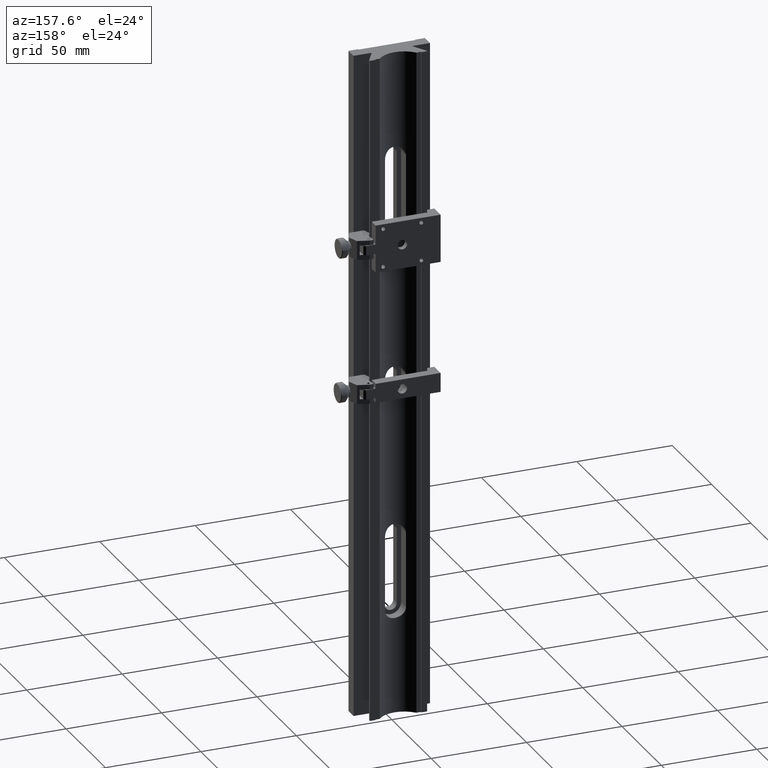
[diagram: clean part render]
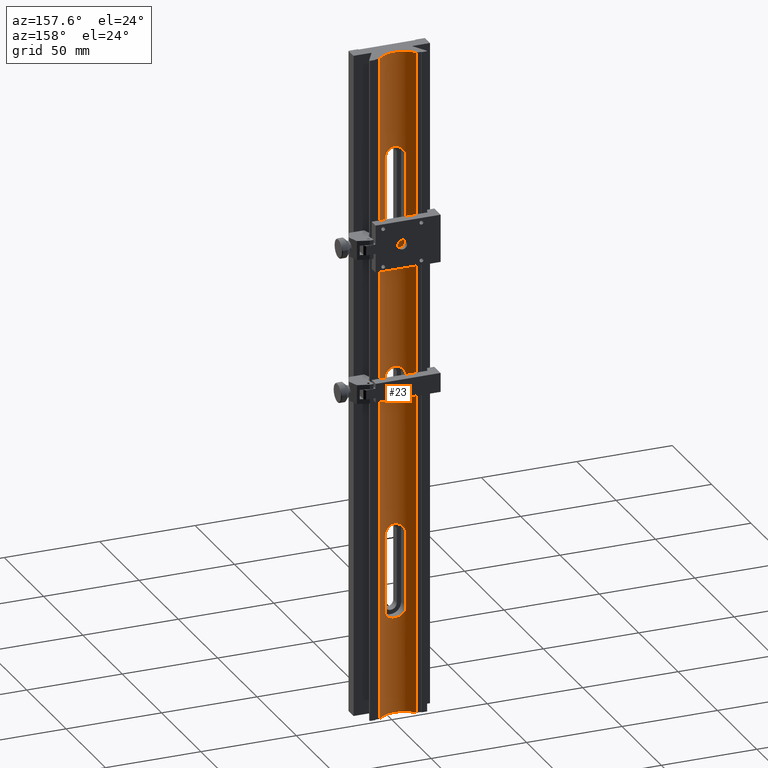
[diagram: same view with one face highlighted and labeled with its STEP entity id]
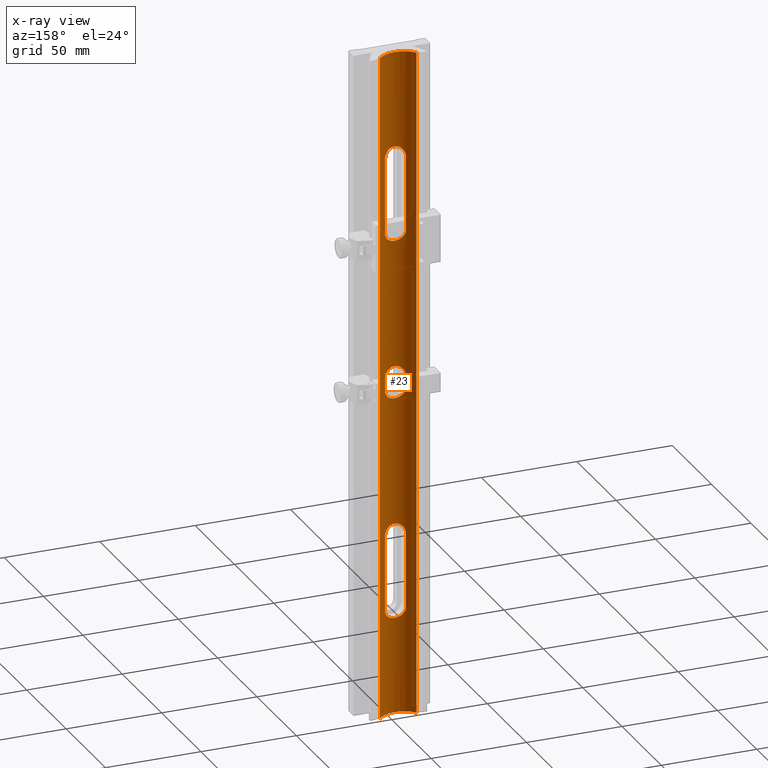
[diagram: x-ray of the same camera — body ghosted, the highlighted face saturated]
A machine part, auxiliary view. The second image highlights one B-rep face of the part: STEP entity #23.
The next image is the same camera in x-ray: the body ghosted, the highlighted face saturated — about 0% of this face is hidden behind the body in this view.
In plain terms, the highlighted cylindrical surface (edge-blend (fillet) strip) has radius 12.5 mm, axis along (-0, 0, -1).
Its self-contained STEP definition (entity closure, byte-faithful):
#23 = ADVANCED_FACE ( 'NONE', ( #6039, #4931, #6647, #5492 ), #3388, .F. ) ;
#48 = CARTESIAN_POINT ( 'NONE',  ( -4.757545737347819603, 4.440405074606873725, 122.2654660182066380 ) ) ;
#50 = DIRECTION ( 'NONE',  ( 0.000000000000000000, 1.000000000000000000, 0.000000000000000000 ) ) ;
#64 = CARTESIAN_POINT ( 'NONE',  ( -4.468409719719221407, 4.325465594975087313, -122.7117387334019440 ) ) ;
#106 = DIRECTION ( 'NONE',  ( 0.000000000000000000, -0.000000000000000000, 1.000000000000000000 ) ) ;
#135 = CARTESIAN_POINT ( 'NONE',  ( 1.444167463114246042, 3.582471709711287922, -75.18988249381513356 ) ) ;
#149 = CARTESIAN_POINT ( 'NONE',  ( -5.500000000000001776, 4.775027839678175567, -119.5000000000000000 ) ) ;
#153 = CARTESIAN_POINT ( 'NONE',  ( -5.499999999999994671, 4.775027839678172015, 119.5000000000000000 ) ) ;
#167 = CARTESIAN_POINT ( 'NONE',  ( 4.935953207741847315, 4.514820086043216385, -78.04735380139054257 ) ) ;
#169 = VERTEX_POINT ( 'NONE', #3631 ) ;
#179 = EDGE_CURVE ( 'NONE', #1857, #5928, #5267, .T. ) ;
#210 = CARTESIAN_POINT ( 'NONE',  ( -1.783197991779763125, 3.623181025438776626, -75.28445996368884607 ) ) ;
#225 = CARTESIAN_POINT ( 'NONE',  ( -0.1746818680405356206, 3.499893860054751560, 8.500241227327975935 ) ) ;
#244 = CARTESIAN_POINT ( 'NONE',  ( 4.360951971730211874, 4.284773272989580661, -77.14384853326598090 ) ) ;
#258 = CARTESIAN_POINT ( 'NONE',  ( -0.3589657864649588581, 3.503822942303211452, 8.491329862232154468 ) ) ;
#260 = CARTESIAN_POINT ( 'NONE',  ( 4.927301002126855067, 4.511737245493963933, 78.04974520197357890 ) ) ;
#297 = CARTESIAN_POINT ( 'NONE',  ( 4.134927261176858160, 4.203101428351038393, 6.630982141538983576 ) ) ;
#334 = CARTESIAN_POINT ( 'NONE',  ( -2.455686713790332654, 3.739010744038297140, 75.56565600194463173 ) ) ;
#367 = EDGE_CURVE ( 'NONE', #2166, #2968, #3036, .T. ) ;
#374 = CARTESIAN_POINT ( 'NONE',  ( 4.365141366191272354, 4.284993196813132066, -6.364994128390051742 ) ) ;
#400 = CARTESIAN_POINT ( 'NONE',  ( 2.452909808896961419, 3.738324891094070512, 75.56391993402969831 ) ) ;
#408 = CARTESIAN_POINT ( 'NONE',  ( -1.444167463114248928, 3.582471709711283481, -8.310117506184877101 ) ) ;
#447 = CARTESIAN_POINT ( 'NONE',  ( -3.640810629803841181, 4.039074654214519278, -7.137592340526054180 ) ) ;
#479 = CARTESIAN_POINT ( 'NONE',  ( 5.500000000000002665, 4.775027839678175567, 119.8683992632187199 ) ) ;
#492 = CARTESIAN_POINT ( 'NONE',  ( 0.7235754915566933176, 3.519625967096239538, -124.9552725504518378 ) ) ;
#495 = VERTEX_POINT ( 'NONE', #3155 ) ;
#506 = DIRECTION ( 'NONE',  ( 0.000000000000000000, -1.000000000000000000, 0.000000000000000000 ) ) ;
#511 = CARTESIAN_POINT ( 'NONE',  ( 5.499999999999995559, 4.775027839678172015, -119.5000000000000000 ) ) ;
#513 = CARTESIAN_POINT ( 'NONE',  ( 0.7318247305610939835, 3.516321624483724317, 124.9631879215218362 ) ) ;
#525 = CARTESIAN_POINT ( 'NONE',  ( 0.9034421561682070001, 3.531417676067723832, -124.9283122604022367 ) ) ;
#545 = DIRECTION ( 'NONE',  ( 0.000000000000000000, -1.000000000000000000, 0.000000000000000000 ) ) ;
#552 = CARTESIAN_POINT ( 'NONE',  ( -4.140132957479333520, 4.202588055097336017, 123.1380067928263173 ) ) ;
#562 = CARTESIAN_POINT ( 'NONE',  ( 4.365141366191279459, 4.284993196813132954, -122.8649941283900375 ) ) ;
#573 = EDGE_CURVE ( 'NONE', #1379, #1857, #941, .T. ) ;
#583 = CARTESIAN_POINT ( 'NONE',  ( 3.365233826132086659, 3.957591329563106886, 123.8650858888913007 ) ) ;
#593 = CARTESIAN_POINT ( 'NONE',  ( -4.360951971730210097, 4.284773272989579773, -122.8561514667340617 ) ) ;
#614 = CARTESIAN_POINT ( 'NONE',  ( 4.015897234029110585, 4.161930955679306265, 123.2621619463195941 ) ) ;
#630 = CARTESIAN_POINT ( 'NONE',  ( 4.140132957479330855, 4.202588055097333353, -123.1380067928262889 ) ) ;
#674 = CARTESIAN_POINT ( 'NONE',  ( 2.455686713790331765, 3.739010744038294920, -75.56565600194460330 ) ) ;
#702 = CARTESIAN_POINT ( 'NONE',  ( -0.9034421561682058899, 3.531417676067723832, -75.07168773959774910 ) ) ;
#712 = EDGE_CURVE ( 'NONE', #3940, #2309, #829, .T. ) ;
#719 = CARTESIAN_POINT ( 'NONE',  ( 4.767077514528518023, 4.442719698820003060, 5.766365201874043223 ) ) ;
#737 = CARTESIAN_POINT ( 'NONE',  ( 5.213099869976748124, 4.637932341751268339, -78.71039188920619267 ) ) ;
#795 = CARTESIAN_POINT ( 'NONE',  ( -4.015897234029109697, 4.161930955679305377, 76.73783805368040589 ) ) ;
#824 = CARTESIAN_POINT ( 'NONE',  ( 2.769513885777389994, 3.806797052175194818, 7.765350601836936484 ) ) ;
#829 = B_SPLINE_CURVE_WITH_KNOTS ( 'NONE', 3,
 ( #2195, #5467, #3792, #5910, #1632, #1098, #2130, #64, #593, #1666, #6488, #6049, #2799, #3731, #1031, #3328, #6016, #2235, #4401, #4836, #2730, #6594, #4331, #492, #525, #1707, #5435, #4264, #7018, #5504, #4299, #630, #562, #4982, #2086, #6452, #1599, #5939, #1063, #3224, #5392, #4878 ),
 .UNSPECIFIED., .F., .F.,
 ( 4, 2, 2, 2, 2, 2, 2, 2, 2, 2, 2, 2, 2, 2, 2, 2, 2, 2, 2, 2, 4 ),
 ( 0.000000000000000000, 0.001088223458269342320, 0.002176446916538684641, 0.003264670374808026961, 0.003808782103942682292, 0.004352893833077337189, 0.005441117291346619228, 0.006529340749615901267, 0.007073452478750542720, 0.007617564207885183306, 0.008705787666154457538, 0.009249899395289095522, 0.009794011124423730036, 0.01088223458269299733, 0.01197045804096226115, 0.01305868149923152498, 0.01414690495750079401, 0.01469101668663544413, 0.01523512841577009252, 0.01632335187403939278, 0.01741157533230869303 ),
 .UNSPECIFIED. ) ;
#830 = CARTESIAN_POINT ( 'NONE',  ( 0.3589657864649565266, 3.503822942303209231, 75.00867013776785086 ) ) ;
#832 = CARTESIAN_POINT ( 'NONE',  ( -2.407148620655123076E-16, 16.00000000000000000, -175.0000000000000000 ) ) ;
#862 = CARTESIAN_POINT ( 'NONE',  ( -5.211065515426130723, 4.637008669236494462, 4.795078069856328895 ) ) ;
#865 = CARTESIAN_POINT ( 'NONE',  ( -0.7318247305610944276, 3.516321624483725650, 75.03681207847814960 ) ) ;
#902 = CARTESIAN_POINT ( 'NONE',  ( -4.360951971730210097, 4.284773272989579773, 77.14384853326598090 ) ) ;
#939 = CARTESIAN_POINT ( 'NONE',  ( -4.468409719719221407, 4.325465594975088202, -6.211738733401979573 ) ) ;
#941 = CIRCLE ( 'NONE', #2757, 12.50000000000000000 ) ;
#980 = CARTESIAN_POINT ( 'NONE',  ( -4.935953207741841986, 4.514820086043216385, -5.452646198609489403 ) ) ;
#1021 = CARTESIAN_POINT ( 'NONE',  ( 4.468409719719223183, 4.325465594975089090, 122.7117387334019725 ) ) ;
#1031 = CARTESIAN_POINT ( 'NONE',  ( -2.455686713790333098, 3.739010744038296696, -124.4343439980554109 ) ) ;
#1044 = CARTESIAN_POINT ( 'NONE',  ( 5.004172744658496264, 4.545134261420407995, -5.289133550571616382 ) ) ;
#1063 = CARTESIAN_POINT ( 'NONE',  ( 5.317647263843143790, 4.687213424654784966, -120.9515702038889202 ) ) ;
#1064 = CARTESIAN_POINT ( 'NONE',  ( 5.500000000000012434, 4.775027839678180896, 175.0000000000000000 ) ) ;
#1071 = LINE ( 'NONE', #3805, #2595 ) ;
#1080 = CARTESIAN_POINT ( 'NONE',  ( 1.436019803944289297, 3.577646812477411675, -8.321557481281221413 ) ) ;
#1098 = CARTESIAN_POINT ( 'NONE',  ( -4.935953207741847315, 4.514820086043218161, -121.9526461986094574 ) ) ;
#1125 = CARTESIAN_POINT ( 'NONE',  ( -4.365141366191278571, 4.284993196813135619, 122.8649941283900802 ) ) ;
#1159 = CARTESIAN_POINT ( 'NONE',  ( -2.407148620655123076E-16, 16.00000000000000000, 175.0000000000000000 ) ) ;
#1250 = CARTESIAN_POINT ( 'NONE',  ( 5.500000000000002665, 4.775027839678175567, -80.13160073678137962 ) ) ;
#1265 = CARTESIAN_POINT ( 'NONE',  ( -5.463268972524252476, 4.756815190711165542, 3.732885129696533966 ) ) ;
#1290 = CARTESIAN_POINT ( 'NONE',  ( 5.500000000000048850, 4.775027839678199548, 175.0000000000000000 ) ) ;
#1298 = CARTESIAN_POINT ( 'NONE',  ( -4.927301002126867502, 4.511737245493969262, 5.450254798026421099 ) ) ;
#1338 = CARTESIAN_POINT ( 'NONE',  ( -1.266012518167694889, 3.562992296828745520, 75.14460928321997812 ) ) ;
#1356 = CARTESIAN_POINT ( 'NONE',  ( -4.927301002126853291, 4.511737245493962156, -78.04974520197356469 ) ) ;
#1367 = CARTESIAN_POINT ( 'NONE',  ( -4.664130054569971762, 4.402269544413258018, 5.920240057219702479 ) ) ;
#1379 = VERTEX_POINT ( 'NONE', #6603 ) ;
#1381 = EDGE_LOOP ( 'NONE', ( #1872, #1528, #3079, #3889 ) ) ;
#1397 = CARTESIAN_POINT ( 'NONE',  ( -2.452909808896963195, 3.738324891094071400, 7.936080065970310571 ) ) ;
#1398 = CARTESIAN_POINT ( 'NONE',  ( 0.7235754915566932066, 3.519625967096238206, 75.04472744954816221 ) ) ;
#1405 = VERTEX_POINT ( 'NONE', #2880 ) ;
#1416 = CARTESIAN_POINT ( 'NONE',  ( -4.757545737347812498, 4.440405074606870173, -77.73453398179341889 ) ) ;
#1432 = CARTESIAN_POINT ( 'NONE',  ( 4.365141366191278571, 4.284993196813135619, 77.13500587160999089 ) ) ;
#1471 = CARTESIAN_POINT ( 'NONE',  ( 5.317647263843142014, 4.687213424654784966, 79.04842979611112241 ) ) ;
#1490 = VERTEX_POINT ( 'NONE', #5517 ) ;
#1509 = CARTESIAN_POINT ( 'NONE',  ( 5.317647263843139349, 4.687213424654783189, -4.451570203888886468 ) ) ;
#1528 = ORIENTED_EDGE ( 'NONE', *, *, #3712, .T. ) ;
#1532 = CARTESIAN_POINT ( 'NONE',  ( -9.604686356149272797, 7.999999999999998224, 175.0000000000000000 ) ) ;
#1546 = CARTESIAN_POINT ( 'NONE',  ( 4.140132957479331743, 4.202588055097335129, -6.638006792826293356 ) ) ;
#1586 = CARTESIAN_POINT ( 'NONE',  ( 5.499999999999994671, 4.775027839678172015, 80.50000000000001421 ) ) ;
#1599 = CARTESIAN_POINT ( 'NONE',  ( 5.004172744658499816, 4.545134261420410660, -121.7891335505716199 ) ) ;
#1600 = LINE ( 'NONE', #1064, #3354 ) ;
#1612 = CARTESIAN_POINT ( 'NONE',  ( 4.757545737347816939, 4.440405074606873725, -5.765466018206599763 ) ) ;
#1627 = VERTEX_POINT ( 'NONE', #5166 ) ;
#1632 = CARTESIAN_POINT ( 'NONE',  ( -5.213099869976750789, 4.637932341751269227, -121.2896081107938073 ) ) ;
#1637 = CARTESIAN_POINT ( 'NONE',  ( -5.499999999999947597, 4.775027839678148922, 175.0000000000000000 ) ) ;
#1652 = CARTESIAN_POINT ( 'NONE',  ( 2.769513885777397100, 3.806797052175197038, 124.2653506018369285 ) ) ;
#1666 = CARTESIAN_POINT ( 'NONE',  ( -4.134927261176864377, 4.203101428351040170, -123.1309821415389791 ) ) ;
#1695 = VERTEX_POINT ( 'NONE', #2981 ) ;
#1707 = CARTESIAN_POINT ( 'NONE',  ( 1.436019803944291517, 3.577646812477408567, -124.8215574812812463 ) ) ;
#1739 = CARTESIAN_POINT ( 'NONE',  ( 4.134927261176864377, 4.203101428351039281, -76.86901785846103508 ) ) ;
#1773 = CARTESIAN_POINT ( 'NONE',  ( -0.1746818680405319291, 3.499893860054751560, -74.99975877267203828 ) ) ;
#1812 = CARTESIAN_POINT ( 'NONE',  ( -2.767522286145573496, 3.806394110068378023, -75.73367735365172848 ) ) ;
#1857 = VERTEX_POINT ( 'NONE', #1985 ) ;
#1859 = CARTESIAN_POINT ( 'NONE',  ( -4.365141366191275019, 4.284993196813132954, 6.364994128390049966 ) ) ;
#1861 = CARTESIAN_POINT ( 'NONE',  ( 4.757545737347808945, 4.440405074606868396, 77.73453398179337626 ) ) ;
#1872 = ORIENTED_EDGE ( 'NONE', *, *, #5894, .F. ) ;
#1934 = CARTESIAN_POINT ( 'NONE',  ( 3.640810629803839404, 4.039074654214517501, 7.137592340526054180 ) ) ;
#1936 = CARTESIAN_POINT ( 'NONE',  ( -2.769513885777398876, 3.806797052175194818, 75.73464939816308572 ) ) ;
#1950 = CARTESIAN_POINT ( 'NONE',  ( -5.317647263843143790, 4.687213424654786742, -79.04842979611112241 ) ) ;
#1965 = CARTESIAN_POINT ( 'NONE',  ( 5.499999999999993783, 4.775027839678173791, 3.000000000000000000 ) ) ;
#1985 = CARTESIAN_POINT ( 'NONE',  ( -9.604686356149272797, 7.999999999999998224, 175.0000000000000000 ) ) ;
#2000 = CARTESIAN_POINT ( 'NONE',  ( -4.134927261176863489, 4.203101428351039281, 76.86901785846100665 ) ) ;
#2029 = DIRECTION ( 'NONE',  ( -0.000000000000000000, 0.000000000000000000, -1.000000000000000000 ) ) ;
#2042 = CARTESIAN_POINT ( 'NONE',  ( 0.9034421561682053348, 3.531417676067726941, -8.428312260402233136 ) ) ;
#2070 = CARTESIAN_POINT ( 'NONE',  ( -5.213099869976744571, 4.637932341751268339, -4.789608110793817097 ) ) ;
#2075 = CARTESIAN_POINT ( 'NONE',  ( -0.1746818680405321789, 3.499893860054751560, 125.0002412273279759 ) ) ;
#2086 = CARTESIAN_POINT ( 'NONE',  ( 4.757545737347811610, 4.440405074606870173, -122.2654660182066522 ) ) ;
#2109 = CARTESIAN_POINT ( 'NONE',  ( -1.791243918881803010, 3.627770058525932484, -8.203307872313336802 ) ) ;
#2130 = CARTESIAN_POINT ( 'NONE',  ( -4.767077514528522464, 4.442719698820007501, -122.2663652018740095 ) ) ;
#2152 = CARTESIAN_POINT ( 'NONE',  ( -2.767522286145575272, 3.806394110068378911, 124.2663226463482857 ) ) ;
#2166 = VERTEX_POINT ( 'NONE', #6265 ) ;
#2195 = CARTESIAN_POINT ( 'NONE',  ( -5.500000000000001776, 4.775027839678175567, -119.5000000000000000 ) ) ;
#2203 = DIRECTION ( 'NONE',  ( -0.000000000000000000, 0.000000000000000000, -1.000000000000000000 ) ) ;
#2220 = CARTESIAN_POINT ( 'NONE',  ( -4.927301002126861285, 4.511737245493965709, 121.9502547980263500 ) ) ;
#2235 = CARTESIAN_POINT ( 'NONE',  ( -1.444167463114246930, 3.582471709711284369, -124.8101175061849091 ) ) ;
#2244 = LINE ( 'NONE', #5513, #6076 ) ;
#2257 = VERTEX_POINT ( 'NONE', #1586 ) ;
#2272 = CARTESIAN_POINT ( 'NONE',  ( 5.463371493397496614, 4.756877311680623777, -79.77044881776218688 ) ) ;
#2289 = CARTESIAN_POINT ( 'NONE',  ( -5.463268972524248923, 4.756815190711164654, 120.2328851296965269 ) ) ;
#2304 = CARTESIAN_POINT ( 'NONE',  ( 5.320886567516186716, 4.688748875783187664, -79.06165402701616074 ) ) ;
#2309 = VERTEX_POINT ( 'NONE', #511 ) ;
#2339 = CARTESIAN_POINT ( 'NONE',  ( 3.640810629803848730, 4.039074654214522830, -76.36240765947397335 ) ) ;
#2382 = CARTESIAN_POINT ( 'NONE',  ( -3.638581638029503740, 4.038379994050424138, -76.36037223972358845 ) ) ;
#2383 = LINE ( 'NONE', #2766, #3367 ) ;
#2395 = CARTESIAN_POINT ( 'NONE',  ( 1.444167463114246042, 3.582471709711285257, 8.310117506184875324 ) ) ;
#2414 = CARTESIAN_POINT ( 'NONE',  ( 4.015897234029110585, 4.161930955679306265, -76.73783805368039168 ) ) ;
#2428 = CARTESIAN_POINT ( 'NONE',  ( 3.365233826132078665, 3.957591329563103333, 7.365085888891292676 ) ) ;
#2471 = CARTESIAN_POINT ( 'NONE',  ( -5.499999999999998224, 4.775027839678173791, 3.000000000000000888 ) ) ;
#2474 = CARTESIAN_POINT ( 'NONE',  ( -5.463371493397496614, 4.756877311680623777, 79.77044881776215846 ) ) ;
#2493 = CARTESIAN_POINT ( 'NONE',  ( -5.004172744658499816, 4.545134261420410660, -78.21086644942838007 ) ) ;
#2507 = CARTESIAN_POINT ( 'NONE',  ( -3.638581638029506404, 4.038379994050423250, 7.139627760276442636 ) ) ;
#2509 = CARTESIAN_POINT ( 'NONE',  ( -0.3716744979042038155, 3.500218916825643234, 75.00049753860503188 ) ) ;
#2540 = EDGE_CURVE ( 'NONE', #6038, #2257, #5874, .T. ) ;
#2541 = CARTESIAN_POINT ( 'NONE',  ( 2.767522286145573496, 3.806394110068379355, 75.73367735365174269 ) ) ;
#2556 = CARTESIAN_POINT ( 'NONE',  ( -5.463268972524248923, 4.756815190711164654, -79.76711487030347314 ) ) ;
#2571 = CARTESIAN_POINT ( 'NONE',  ( 5.004172744658501593, 4.545134261420408883, 78.21086644942838007 ) ) ;
#2595 = VECTOR ( 'NONE', #6529, 1000.000000000000000 ) ;
#2612 = DIRECTION ( 'NONE',  ( -0.000000000000000000, 0.000000000000000000, -1.000000000000000000 ) ) ;
#2616 = CARTESIAN_POINT ( 'NONE',  ( 0.3589657864649571928, 3.503822942303209675, -8.491329862232152692 ) ) ;
#2625 = EDGE_CURVE ( 'NONE', #2718, #1627, #2244, .T. ) ;
#2652 = CARTESIAN_POINT ( 'NONE',  ( 1.266012518167695111, 3.562992296828745520, 124.8553907167800077 ) ) ;
#2685 = CARTESIAN_POINT ( 'NONE',  ( -0.3589657864649544727, 3.503822942303211008, 124.9913298622321634 ) ) ;
#2718 = VERTEX_POINT ( 'NONE', #5729 ) ;
#2730 = CARTESIAN_POINT ( 'NONE',  ( -0.3716744979042033159, 3.500218916825643234, -124.9995024613949681 ) ) ;
#2750 = CARTESIAN_POINT ( 'NONE',  ( 4.935953207741847315, 4.514820086043216385, 121.9526461986094432 ) ) ;
#2757 = AXIS2_PLACEMENT_3D ( 'NONE', #3207, #2612, #506 ) ;
#2766 = CARTESIAN_POINT ( 'NONE',  ( 9.604686356149276349, 8.000000000000001776, 175.0000000000000000 ) ) ;
#2785 = CARTESIAN_POINT ( 'NONE',  ( 3.640810629803848730, 4.039074654214522830, 123.6375923405260693 ) ) ;
#2799 = CARTESIAN_POINT ( 'NONE',  ( -3.365233826132086214, 3.957591329563104221, -123.8650858888913007 ) ) ;
#2823 = CARTESIAN_POINT ( 'NONE',  ( -5.499999999999994671, 4.775027839678173791, 119.8685359348027646 ) ) ;
#2837 = CARTESIAN_POINT ( 'NONE',  ( 1.960439013360205651, 3.653553443696079928, -75.35814081710192625 ) ) ;
#2858 = ORIENTED_EDGE ( 'NONE', *, *, #6760, .T. ) ;
#2880 = CARTESIAN_POINT ( 'NONE',  ( -5.499999999999994671, 4.775027839678172015, 119.5000000000000000 ) ) ;
#2884 = CARTESIAN_POINT ( 'NONE',  ( -2.767522286145573496, 3.806394110068378467, 7.766322646348285730 ) ) ;
#2903 = CARTESIAN_POINT ( 'NONE',  ( 0.7318247305610940945, 3.516321624483724317, -75.03681207847812118 ) ) ;
#2958 = CARTESIAN_POINT ( 'NONE',  ( 4.015897234029102592, 4.161930955679302713, 6.762161946319627859 ) ) ;
#2966 = DIRECTION ( 'NONE',  ( -0.000000000000000000, 0.000000000000000000, -1.000000000000000000 ) ) ;
#2968 = VERTEX_POINT ( 'NONE', #3293 ) ;
#2981 = CARTESIAN_POINT ( 'NONE',  ( 5.500000000000002665, 4.775027839678175567, 119.5000000000000000 ) ) ;
#2993 = CARTESIAN_POINT ( 'NONE',  ( 5.463371493397490397, 4.756877311680621112, 3.729551182237842433 ) ) ;
#2996 = DIRECTION ( 'NONE',  ( -0.000000000000000000, 0.000000000000000000, -1.000000000000000000 ) ) ;
#3009 = CIRCLE ( 'NONE', #6322, 12.50000000000000000 ) ;
#3036 = B_SPLINE_CURVE_WITH_KNOTS ( 'NONE', 3,
 ( #5122, #1250, #2272, #2304, #737, #167, #4435, #6625, #244, #1739, #2414, #2339, #3895, #5550, #674, #2837, #5013, #135, #4468, #2903, #6660, #1773, #5084, #3400, #702, #4511, #210, #6704, #1812, #3973, #2382, #3057, #4690, #3118, #1416, #1356, #2493, #6875, #1950, #2556, #4083, #6912 ),
 .UNSPECIFIED., .F., .F.,
 ( 4, 2, 2, 2, 2, 2, 2, 2, 2, 2, 2, 2, 2, 2, 2, 2, 2, 2, 2, 2, 4 ),
 ( 0.000000000000000000, 0.001088223458269342104, 0.002176446916538684207, 0.003264670374808026528, 0.003808782103942681425, 0.004352893833077336322, 0.005441117291346617493, 0.006529340749615898665, 0.007073452478750540118, 0.007617564207885180703, 0.008705787666154454069, 0.009249899395289093787, 0.009794011124423730036, 0.01088223458269299733, 0.01197045804096226462, 0.01305868149923153018, 0.01414690495750079401, 0.01469101668663544413, 0.01523512841577009252, 0.01632335187403939278, 0.01741157533230869303 ),
 .UNSPECIFIED. ) ;
#3038 = CARTESIAN_POINT ( 'NONE',  ( 4.140132957479330855, 4.202588055097335129, 76.86199320717371108 ) ) ;
#3045 = ORIENTED_EDGE ( 'NONE', *, *, #4136, .T. ) ;
#3047 = VECTOR ( 'NONE', #5305, 1000.000000000000000 ) ;
#3057 = CARTESIAN_POINT ( 'NONE',  ( -4.140132957479329967, 4.202588055097335129, -76.86199320717372530 ) ) ;
#3079 = ORIENTED_EDGE ( 'NONE', *, *, #179, .F. ) ;
#3118 = CARTESIAN_POINT ( 'NONE',  ( -4.664130054569973538, 4.402269544413259794, -77.57975994278032772 ) ) ;
#3145 = CARTESIAN_POINT ( 'NONE',  ( -5.500000000000000000, 4.775027839678175567, -2.999999999999999112 ) ) ;
#3155 = CARTESIAN_POINT ( 'NONE',  ( 9.604686356149276349, 8.000000000000001776, -175.0000000000000000 ) ) ;
#3177 = CARTESIAN_POINT ( 'NONE',  ( 5.211065515426127170, 4.637008669236493574, -4.795078069856323566 ) ) ;
#3182 = CARTESIAN_POINT ( 'NONE',  ( 5.500000000000002665, 4.775027839678175567, 119.5000000000000000 ) ) ;
#3207 = CARTESIAN_POINT ( 'NONE',  ( -2.407148620655123076E-16, 16.00000000000000000, 175.0000000000000000 ) ) ;
#3209 = CARTESIAN_POINT ( 'NONE',  ( 5.499999999999992895, 4.775027839678172015, -2.999999999999999112 ) ) ;
#3213 = CARTESIAN_POINT ( 'NONE',  ( 1.444167463114246042, 3.582471709711287922, 124.8101175061848949 ) ) ;
#3224 = CARTESIAN_POINT ( 'NONE',  ( 5.463268972524248923, 4.756815190711164654, -120.2328851296965126 ) ) ;
#3250 = CARTESIAN_POINT ( 'NONE',  ( -3.359488323669842291, 3.956037097100741473, 123.8693076541405418 ) ) ;
#3293 = CARTESIAN_POINT ( 'NONE',  ( -5.499999999999994671, 4.775027839678172015, -80.50000000000001421 ) ) ;
#3315 = CARTESIAN_POINT ( 'NONE',  ( 5.320886567516186716, 4.688748875783187664, 120.9383459729838535 ) ) ;
#3317 = DIRECTION ( 'NONE',  ( -0.000000000000000000, 0.000000000000000000, -1.000000000000000000 ) ) ;
#3328 = CARTESIAN_POINT ( 'NONE',  ( -1.960439013360205651, 3.653553443696080816, -124.6418591828980738 ) ) ;
#3354 = VECTOR ( 'NONE', #2029, 1000.000000000000000 ) ;
#3367 = VECTOR ( 'NONE', #106, 1000.000000000000000 ) ;
#3388 = CYLINDRICAL_SURFACE ( 'NONE', #4708, 12.50000000000000000 ) ;
#3400 = CARTESIAN_POINT ( 'NONE',  ( -0.7235754915566916523, 3.519625967096239094, -75.04472744954817642 ) ) ;
#3426 = EDGE_CURVE ( 'NONE', #1695, #1405, #4530, .T. ) ;
#3451 = CARTESIAN_POINT ( 'NONE',  ( 5.320886567516180499, 4.688748875783183223, 4.438345972983836596 ) ) ;
#3494 = CARTESIAN_POINT ( 'NONE',  ( 5.213099869976737466, 4.637932341751264786, 4.789608110793814433 ) ) ;
#3497 = CARTESIAN_POINT ( 'NONE',  ( 3.638581638029503296, 4.038379994050421473, 76.36037223972358845 ) ) ;
#3560 = CARTESIAN_POINT ( 'NONE',  ( -4.767077514528525128, 4.442719698820010166, 77.73363479812599053 ) ) ;
#3596 = CARTESIAN_POINT ( 'NONE',  ( 5.500000000000025757, 4.775027839678188890, 175.0000000000000000 ) ) ;
#3631 = CARTESIAN_POINT ( 'NONE',  ( 5.499999999999993783, 4.775027839678173791, 3.000000000000000000 ) ) ;
#3712 = EDGE_CURVE ( 'NONE', #495, #5928, #3009, .T. ) ;
#3714 = CARTESIAN_POINT ( 'NONE',  ( 5.463268972524248035, 4.756815190711163766, -3.732885129696529081 ) ) ;
#3731 = CARTESIAN_POINT ( 'NONE',  ( -2.769513885777397100, 3.806797052175195262, -124.2653506018369285 ) ) ;
#3749 = ORIENTED_EDGE ( 'NONE', *, *, #6967, .T. ) ;
#3750 = CARTESIAN_POINT ( 'NONE',  ( 5.463371493397496614, 4.756877311680623777, 120.2295511822378558 ) ) ;
#3792 = CARTESIAN_POINT ( 'NONE',  ( -5.463371493397496614, 4.756877311680623777, -120.2295511822378558 ) ) ;
#3805 = CARTESIAN_POINT ( 'NONE',  ( -5.499999999999984013, 4.775027839678166686, 175.0000000000000000 ) ) ;
#3818 = CARTESIAN_POINT ( 'NONE',  ( 1.960439013360205651, 3.653553443696079928, 124.6418591828980738 ) ) ;
#3854 = CARTESIAN_POINT ( 'NONE',  ( 4.767077514528524240, 4.442719698820009278, 122.2663652018740379 ) ) ;
#3889 = ORIENTED_EDGE ( 'NONE', *, *, #573, .F. ) ;
#3895 = CARTESIAN_POINT ( 'NONE',  ( 3.365233826132086659, 3.957591329563106886, -76.13491411110874196 ) ) ;
#3940 = VERTEX_POINT ( 'NONE', #149 ) ;
#3947 = LINE ( 'NONE', #1290, #4489 ) ;
#3973 = CARTESIAN_POINT ( 'NONE',  ( -3.359488323669837850, 3.956037097100738809, -76.13069234585948664 ) ) ;
#3986 = CARTESIAN_POINT ( 'NONE',  ( -1.783197991779766678, 3.623181025438773961, 8.215540036311196559 ) ) ;
#4023 = CARTESIAN_POINT ( 'NONE',  ( 0.7318247305610903197, 3.516321624483727426, 8.463187921521903689 ) ) ;
#4064 = CARTESIAN_POINT ( 'NONE',  ( 1.960439013360199212, 3.653553443696078595, 8.141859182898071978 ) ) ;
#4067 = CARTESIAN_POINT ( 'NONE',  ( -1.960439013360206095, 3.653553443696080816, 75.35814081710195467 ) ) ;
#4083 = CARTESIAN_POINT ( 'NONE',  ( -5.499999999999995559, 4.775027839678173791, -80.13146406519726384 ) ) ;
#4095 = CARTESIAN_POINT ( 'NONE',  ( -0.7235754915566964263, 3.519625967096240426, 8.455272550451853775 ) ) ;
#4099 = CARTESIAN_POINT ( 'NONE',  ( 0.9034421561682064450, 3.531417676067726941, 75.07168773959774910 ) ) ;
#4136 = EDGE_CURVE ( 'NONE', #2968, #3940, #6422, .T. ) ;
#4176 = CARTESIAN_POINT ( 'NONE',  ( -1.444167463114246708, 3.582471709711283481, 75.18988249381514777 ) ) ;
#4184 = CARTESIAN_POINT ( 'NONE',  ( -4.015897234029106144, 4.161930955679302713, -6.762161946319627859 ) ) ;
#4203 = EDGE_CURVE ( 'NONE', #2166, #2309, #3947, .T. ) ;
#4213 = CARTESIAN_POINT ( 'NONE',  ( 4.664130054569969985, 4.402269544413256241, -5.920240057219698038 ) ) ;
#4247 = CARTESIAN_POINT ( 'NONE',  ( 2.452909808896960531, 3.738324891094071400, -7.936080065970308794 ) ) ;
#4264 = CARTESIAN_POINT ( 'NONE',  ( 2.452909808896960087, 3.738324891094070956, -124.4360800659703301 ) ) ;
#4282 = CARTESIAN_POINT ( 'NONE',  ( 3.638581638029504628, 4.038379994050422361, -7.139627760276440860 ) ) ;
#4299 = CARTESIAN_POINT ( 'NONE',  ( 3.638581638029505072, 4.038379994050419697, -123.6396277602764400 ) ) ;
#4314 = CARTESIAN_POINT ( 'NONE',  ( -0.3716744979042031494, 3.500218916825645898, -8.499502461394966346 ) ) ;
#4319 = CARTESIAN_POINT ( 'NONE',  ( -0.7235754915566918744, 3.519625967096239094, 124.9552725504518378 ) ) ;
#4331 = CARTESIAN_POINT ( 'NONE',  ( 0.3589657864649559160, 3.503822942303211896, -124.9913298622321634 ) ) ;
#4351 = CARTESIAN_POINT ( 'NONE',  ( 4.360951971730211874, 4.284773272989580661, 122.8561514667340617 ) ) ;
#4386 = CARTESIAN_POINT ( 'NONE',  ( -5.004172744658500704, 4.545134261420407107, 121.7891335505716057 ) ) ;
#4401 = CARTESIAN_POINT ( 'NONE',  ( -1.266012518167695111, 3.562992296828745964, -124.8553907167800361 ) ) ;
#4435 = CARTESIAN_POINT ( 'NONE',  ( 4.767077514528524240, 4.442719698820009278, -77.73363479812596211 ) ) ;
#4436 = CARTESIAN_POINT ( 'NONE',  ( -9.604686356149272797, 7.999999999999998224, -175.0000000000000000 ) ) ;
#4448 = EDGE_CURVE ( 'NONE', #1695, #2257, #1600, .T. ) ;
#4468 = CARTESIAN_POINT ( 'NONE',  ( 1.266012518167695111, 3.562992296828745520, -75.14460928321997812 ) ) ;
#4489 = VECTOR ( 'NONE', #6140, 1000.000000000000000 ) ;
#4511 = CARTESIAN_POINT ( 'NONE',  ( -1.436019803944289963, 3.577646812477409455, -75.17844251871878214 ) ) ;
#4530 = B_SPLINE_CURVE_WITH_KNOTS ( 'NONE', 3,
 ( #3182, #479, #3750, #3315, #5959, #2750, #3854, #1021, #4351, #6037, #614, #2785, #583, #1652, #6479, #3818, #5930, #3213, #2652, #513, #6971, #2075, #2685, #4319, #4822, #7006, #4867, #7043, #2152, #3250, #5423, #552, #1125, #4927, #48, #2220, #4386, #5565, #5599, #2289, #2823, #153 ),
 .UNSPECIFIED., .F., .F.,
 ( 4, 2, 2, 2, 2, 2, 2, 2, 2, 2, 2, 2, 2, 2, 2, 2, 2, 2, 2, 2, 4 ),
 ( 0.000000000000000000, 0.001088223458269342104, 0.002176446916538684207, 0.003264670374808026528, 0.003808782103942681425, 0.004352893833077336322, 0.005441117291346617493, 0.006529340749615898665, 0.007073452478750540118, 0.007617564207885180703, 0.008705787666154454069, 0.009249899395289093787, 0.009794011124423728301, 0.01088223458269299559, 0.01197045804096226289, 0.01305868149923153018, 0.01414690495750079574, 0.01469101668663544587, 0.01523512841577009426, 0.01632335187403939278, 0.01741157533230869303 ),
 .UNSPECIFIED. ) ;
#4542 = ORIENTED_EDGE ( 'NONE', *, *, #4203, .F. ) ;
#4564 = CARTESIAN_POINT ( 'NONE',  ( -4.140132957479331743, 4.202588055097335129, 6.638006792826296909 ) ) ;
#4599 = CARTESIAN_POINT ( 'NONE',  ( 4.360951971730205656, 4.284773272989579773, 6.356151466734034194 ) ) ;
#4603 = CARTESIAN_POINT ( 'NONE',  ( -1.791243918881801234, 3.627770058525933372, 75.29669212768669695 ) ) ;
#4645 = CARTESIAN_POINT ( 'NONE',  ( -5.500000000000002665, 4.775027839678177344, 80.13160073678133699 ) ) ;
#4671 = CARTESIAN_POINT ( 'NONE',  ( -5.004172744658502481, 4.545134261420412436, 5.289133550571619935 ) ) ;
#4675 = B_SPLINE_CURVE_WITH_KNOTS ( 'NONE', 3,
 ( #1965, #5062, #2993, #3451, #3494, #6791, #719, #6751, #4599, #297, #2958, #1934, #2428, #824, #5593, #4064, #5633, #2395, #6830, #4023, #6180, #225, #258, #4095, #5169, #6255, #3986, #1397, #2884, #5212, #2507, #4564, #1859, #1367, #6286, #1298, #4671, #862, #6216, #1265, #6855, #2471 ),
 .UNSPECIFIED., .F., .F.,
 ( 4, 2, 2, 2, 2, 2, 2, 2, 2, 2, 2, 2, 2, 2, 2, 2, 2, 2, 2, 2, 4 ),
 ( 8.673617379884034509E-19, 0.001088223458269298735, 0.002176446916538596604, 0.003264670374807894255, 0.003808782103942541346, 0.004352893833077188870, 0.005441117291346481318, 0.006529340749615775499, 0.007073452478750422157, 0.007617564207885067079, 0.008705787666154358659, 0.009249899395289003581, 0.009794011124423650239, 0.01088223458269294008, 0.01197045804096223166, 0.01305868149923152671, 0.01414690495750081656, 0.01469101668663546148, 0.01523512841577010640, 0.01632335187403939278, 0.01741157533230867915 ),
 .UNSPECIFIED. ) ;
#4676 = CARTESIAN_POINT ( 'NONE',  ( 1.783197991779764013, 3.623181025438773961, 75.28445996368883186 ) ) ;
#4690 = CARTESIAN_POINT ( 'NONE',  ( -4.365141366191277683, 4.284993196813135619, -77.13500587160999089 ) ) ;
#4708 = AXIS2_PLACEMENT_3D ( 'NONE', #1159, #3317, #50 ) ;
#4709 = CARTESIAN_POINT ( 'NONE',  ( 5.499999999999993783, 4.775027839678172903, 80.13146406519722120 ) ) ;
#4717 = CARTESIAN_POINT ( 'NONE',  ( 2.767522286145572163, 3.806394110068378467, -7.766322646348285730 ) ) ;
#4751 = ORIENTED_EDGE ( 'NONE', *, *, #712, .T. ) ;
#4756 = CARTESIAN_POINT ( 'NONE',  ( -2.769513885777393991, 3.806797052175196594, -7.765350601836940925 ) ) ;
#4788 = CARTESIAN_POINT ( 'NONE',  ( 1.783197991779764902, 3.623181025438776182, -8.215540036311196559 ) ) ;
#4819 = VECTOR ( 'NONE', #2966, 1000.000000000000000 ) ;
#4822 = CARTESIAN_POINT ( 'NONE',  ( -0.9034421561682057789, 3.531417676067723832, 124.9283122604022367 ) ) ;
#4836 = CARTESIAN_POINT ( 'NONE',  ( -0.7318247305610938724, 3.516321624483725206, -124.9631879215218930 ) ) ;
#4864 = ORIENTED_EDGE ( 'NONE', *, *, #6580, .T. ) ;
#4867 = CARTESIAN_POINT ( 'NONE',  ( -1.783197991779762903, 3.623181025438776626, 124.7155400363112250 ) ) ;
#4878 = CARTESIAN_POINT ( 'NONE',  ( 5.499999999999995559, 4.775027839678172015, -119.5000000000000000 ) ) ;
#4927 = CARTESIAN_POINT ( 'NONE',  ( -4.664130054569975314, 4.402269544413258906, 122.4202400572197433 ) ) ;
#4931 = FACE_BOUND ( 'NONE', #5730, .T. ) ;
#4982 = CARTESIAN_POINT ( 'NONE',  ( 4.664130054569976203, 4.402269544413256241, -122.4202400572197291 ) ) ;
#5009 = ORIENTED_EDGE ( 'NONE', *, *, #3426, .T. ) ;
#5013 = CARTESIAN_POINT ( 'NONE',  ( 1.791243918881800790, 3.627770058525936481, -75.29669212768669695 ) ) ;
#5038 = ORIENTED_EDGE ( 'NONE', *, *, #2625, .T. ) ;
#5062 = CARTESIAN_POINT ( 'NONE',  ( 5.499999999999995559, 4.775027839678172015, 3.368399263218692763 ) ) ;
#5084 = CARTESIAN_POINT ( 'NONE',  ( -0.3589657864649542507, 3.503822942303211008, -75.00867013776787928 ) ) ;
#5122 = CARTESIAN_POINT ( 'NONE',  ( 5.500000000000002665, 4.775027839678175567, -80.50000000000001421 ) ) ;
#5136 = CARTESIAN_POINT ( 'NONE',  ( -5.213099869976749901, 4.637932341751268339, 78.71039188920620688 ) ) ;
#5166 = CARTESIAN_POINT ( 'NONE',  ( -5.500000000000000000, 4.775027839678175567, -2.999999999999999112 ) ) ;
#5169 = CARTESIAN_POINT ( 'NONE',  ( -0.9034421561682077773, 3.531417676067726941, 8.428312260402233136 ) ) ;
#5173 = CARTESIAN_POINT ( 'NONE',  ( -4.468409719719223183, 4.325465594975088202, 77.28826126659805595 ) ) ;
#5212 = CARTESIAN_POINT ( 'NONE',  ( -3.359488323669840071, 3.956037097100741473, 7.369307654140523134 ) ) ;
#5213 = CARTESIAN_POINT ( 'NONE',  ( 4.664130054569974426, 4.402269544413258018, 77.57975994278032772 ) ) ;
#5267 = LINE ( 'NONE', #1532, #4819 ) ;
#5268 = LINE ( 'NONE', #3596, #3047 ) ;
#5271 = CARTESIAN_POINT ( 'NONE',  ( -4.935953207741849091, 4.514820086043216385, 78.04735380139054257 ) ) ;
#5277 = CARTESIAN_POINT ( 'NONE',  ( -2.455686713790328657, 3.739010744038294032, -7.934343998055414460 ) ) ;
#5305 = DIRECTION ( 'NONE',  ( -0.000000000000000000, 0.000000000000000000, -1.000000000000000000 ) ) ;
#5345 = CARTESIAN_POINT ( 'NONE',  ( 5.499999999999992006, 4.775027839678171127, -3.368535934802749487 ) ) ;
#5374 = CARTESIAN_POINT ( 'NONE',  ( -4.134927261176861712, 4.203101428351041946, -6.630982141538981800 ) ) ;
#5392 = CARTESIAN_POINT ( 'NONE',  ( 5.499999999999995559, 4.775027839678174679, -119.8685359348027646 ) ) ;
#5423 = CARTESIAN_POINT ( 'NONE',  ( -3.638581638029504628, 4.038379994050422361, 123.6396277602764684 ) ) ;
#5435 = CARTESIAN_POINT ( 'NONE',  ( 1.783197991779763791, 3.623181025438775293, -124.7155400363112108 ) ) ;
#5467 = CARTESIAN_POINT ( 'NONE',  ( -5.500000000000002665, 4.775027839678177344, -119.8683992632186914 ) ) ;
#5492 = FACE_OUTER_BOUND ( 'NONE', #1381, .T. ) ;
#5504 = CARTESIAN_POINT ( 'NONE',  ( 3.359488323669838739, 3.956037097100742361, -123.8693076541405276 ) ) ;
#5513 = CARTESIAN_POINT ( 'NONE',  ( -5.499999999999966249, 4.775027839678157804, 175.0000000000000000 ) ) ;
#5517 = CARTESIAN_POINT ( 'NONE',  ( 5.499999999999992895, 4.775027839678172015, -2.999999999999999112 ) ) ;
#5537 = ORIENTED_EDGE ( 'NONE', *, *, #367, .T. ) ;
#5550 = CARTESIAN_POINT ( 'NONE',  ( 2.769513885777397100, 3.806797052175197038, -75.73464939816307151 ) ) ;
#5565 = CARTESIAN_POINT ( 'NONE',  ( -5.211065515426128947, 4.637008669236492686, 121.2950780698563165 ) ) ;
#5593 = CARTESIAN_POINT ( 'NONE',  ( 2.455686713790325992, 3.739010744038294032, 7.934343998055409131 ) ) ;
#5599 = CARTESIAN_POINT ( 'NONE',  ( -5.317647263843142014, 4.687213424654784077, 120.9515702038888918 ) ) ;
#5633 = CARTESIAN_POINT ( 'NONE',  ( 1.791243918881800123, 3.627770058525934704, 8.203307872313331472 ) ) ;
#5676 = CARTESIAN_POINT ( 'NONE',  ( 1.436019803944290629, 3.577646812477411675, 75.17844251871878214 ) ) ;
#5706 = CARTESIAN_POINT ( 'NONE',  ( -3.365233826132086214, 3.957591329563104221, 76.13491411110872775 ) ) ;
#5729 = CARTESIAN_POINT ( 'NONE',  ( -5.499999999999998224, 4.775027839678173791, 3.000000000000000888 ) ) ;
#5730 = EDGE_LOOP ( 'NONE', ( #3045, #4751, #4542, #5537 ) ) ;
#5742 = CARTESIAN_POINT ( 'NONE',  ( 0.1746818680405328450, 3.499893860054751116, 74.99975877267206670 ) ) ;
#5808 = CARTESIAN_POINT ( 'NONE',  ( 5.499999999999994671, 4.775027839678172015, 80.50000000000001421 ) ) ;
#5814 = CARTESIAN_POINT ( 'NONE',  ( -5.463371493397495726, 4.756877311680621112, -3.729551182237841545 ) ) ;
#5851 = CARTESIAN_POINT ( 'NONE',  ( -5.500000000000002665, 4.775027839678177344, -3.368399263218691431 ) ) ;
#5874 = B_SPLINE_CURVE_WITH_KNOTS ( 'NONE', 3,
 ( #6364, #4645, #2474, #6831, #5136, #5271, #3560, #5173, #902, #2000, #795, #6219, #5706, #1936, #334, #4067, #4603, #4176, #1338, #865, #2509, #5742, #830, #1398, #4099, #5676, #4676, #400, #2541, #6287, #3497, #3038, #1432, #5213, #1861, #260, #2571, #6795, #1471, #6859, #4709, #5808 ),
 .UNSPECIFIED., .F., .F.,
 ( 4, 2, 2, 2, 2, 2, 2, 2, 2, 2, 2, 2, 2, 2, 2, 2, 2, 2, 2, 2, 4 ),
 ( 0.000000000000000000, 0.001088223458269343188, 0.002176446916538686376, 0.003264670374808029130, 0.003808782103942684460, 0.004352893833077340659, 0.005441117291346621830, 0.006529340749615905604, 0.007073452478750547924, 0.007617564207885188510, 0.008705787666154464477, 0.009249899395289100726, 0.009794011124423738709, 0.01088223458269300427, 0.01197045804096227156, 0.01305868149923153712, 0.01414690495750080268, 0.01469101668663545281, 0.01523512841577009946, 0.01632335187403939625, 0.01741157533230869303 ),
 .UNSPECIFIED. ) ;
#5876 = B_SPLINE_CURVE_WITH_KNOTS ( 'NONE', 3,
 ( #3145, #5851, #5814, #6503, #2070, #980, #6474, #939, #6901, #5374, #4184, #447, #5896, #4756, #5277, #7000, #2109, #408, #6371, #6937, #4314, #6966, #2616, #5923, #2042, #1080, #4788, #4247, #4717, #6433, #4282, #1546, #374, #4213, #1612, #6401, #1044, #3177, #1509, #3714, #5345, #3209 ),
 .UNSPECIFIED., .F., .F.,
 ( 4, 2, 2, 2, 2, 2, 2, 2, 2, 2, 2, 2, 2, 2, 2, 2, 2, 2, 2, 2, 4 ),
 ( 8.673617379884034509E-19, 0.001088223458269296350, 0.002176446916538590532, 0.003264670374807884280, 0.003808782103942531805, 0.004352893833077179329, 0.005441117291346470042, 0.006529340749615762489, 0.007073452478750409146, 0.007617564207885054936, 0.008705787666154346516, 0.009249899395288993173, 0.009794011124423638096, 0.01088223458269293141, 0.01197045804096222472, 0.01305868149923151804, 0.01414690495750081309, 0.01469101668663545975, 0.01523512841577010814, 0.01632335187403940319, 0.01741157533230869303 ),
 .UNSPECIFIED. ) ;
#5894 = EDGE_CURVE ( 'NONE', #495, #1379, #2383, .T. ) ;
#5896 = CARTESIAN_POINT ( 'NONE',  ( -3.365233826132080885, 3.957591329563104221, -7.365085888891294452 ) ) ;
#5910 = CARTESIAN_POINT ( 'NONE',  ( -5.320886567516185828, 4.688748875783187664, -120.9383459729838535 ) ) ;
#5923 = CARTESIAN_POINT ( 'NONE',  ( 0.7235754915566947609, 3.519625967096238206, -8.455272550451855551 ) ) ;
#5928 = VERTEX_POINT ( 'NONE', #4436 ) ;
#5930 = CARTESIAN_POINT ( 'NONE',  ( 1.791243918881800790, 3.627770058525936481, 124.7033078723133315 ) ) ;
#5931 = ORIENTED_EDGE ( 'NONE', *, *, #4448, .F. ) ;
#5939 = CARTESIAN_POINT ( 'NONE',  ( 5.211065515426130723, 4.637008669236494462, -121.2950780698563449 ) ) ;
#5959 = CARTESIAN_POINT ( 'NONE',  ( 5.213099869976748124, 4.637932341751268339, 121.2896081107937931 ) ) ;
#5981 = VECTOR ( 'NONE', #2203, 1000.000000000000000 ) ;
#6016 = CARTESIAN_POINT ( 'NONE',  ( -1.791243918881801234, 3.627770058525933372, -124.7033078723133315 ) ) ;
#6037 = CARTESIAN_POINT ( 'NONE',  ( 4.134927261176864377, 4.203101428351039281, 123.1309821415389649 ) ) ;
#6038 = VERTEX_POINT ( 'NONE', #6240 ) ;
#6039 = FACE_BOUND ( 'NONE', #6685, .T. ) ;
#6049 = CARTESIAN_POINT ( 'NONE',  ( -3.640810629803847842, 4.039074654214522830, -123.6375923405260266 ) ) ;
#6076 = VECTOR ( 'NONE', #6527, 1000.000000000000000 ) ;
#6140 = DIRECTION ( 'NONE',  ( -0.000000000000000000, 0.000000000000000000, -1.000000000000000000 ) ) ;
#6180 = CARTESIAN_POINT ( 'NONE',  ( 0.3716744979042013175, 3.500218916825645010, 8.499502461394962793 ) ) ;
#6216 = CARTESIAN_POINT ( 'NONE',  ( -5.317647263843144678, 4.687213424654784077, 4.451570203888890909 ) ) ;
#6219 = CARTESIAN_POINT ( 'NONE',  ( -3.640810629803847842, 4.039074654214522830, 76.36240765947394493 ) ) ;
#6240 = CARTESIAN_POINT ( 'NONE',  ( -5.500000000000001776, 4.775027839678175567, 80.50000000000001421 ) ) ;
#6255 = CARTESIAN_POINT ( 'NONE',  ( -1.436019803944290629, 3.577646812477411675, 8.321557481281224966 ) ) ;
#6265 = CARTESIAN_POINT ( 'NONE',  ( 5.500000000000002665, 4.775027839678175567, -80.50000000000001421 ) ) ;
#6286 = CARTESIAN_POINT ( 'NONE',  ( -4.757545737347824044, 4.440405074606875502, 5.765466018206600651 ) ) ;
#6287 = CARTESIAN_POINT ( 'NONE',  ( 3.359488323669840071, 3.956037097100741473, 76.13069234585948664 ) ) ;
#6322 = AXIS2_PLACEMENT_3D ( 'NONE', #832, #2996, #545 ) ;
#6332 = EDGE_LOOP ( 'NONE', ( #5931, #5009, #3749, #7048 ) ) ;
#6364 = CARTESIAN_POINT ( 'NONE',  ( -5.500000000000001776, 4.775027839678175567, 80.50000000000001421 ) ) ;
#6371 = CARTESIAN_POINT ( 'NONE',  ( -1.266012518167692225, 3.562992296828746408, -8.355390716780016547 ) ) ;
#6401 = CARTESIAN_POINT ( 'NONE',  ( 4.927301002126861285, 4.511737245493966597, -5.450254798026414882 ) ) ;
#6422 = LINE ( 'NONE', #1637, #5981 ) ;
#6433 = CARTESIAN_POINT ( 'NONE',  ( 3.359488323669836074, 3.956037097100739697, -7.369307654140521358 ) ) ;
#6452 = CARTESIAN_POINT ( 'NONE',  ( 4.927301002126854179, 4.511737245493964821, -121.9502547980264211 ) ) ;
#6457 = ORIENTED_EDGE ( 'NONE', *, *, #6852, .F. ) ;
#6474 = CARTESIAN_POINT ( 'NONE',  ( -4.767077514528522464, 4.442719698820010166, -5.766365201874048552 ) ) ;
#6479 = CARTESIAN_POINT ( 'NONE',  ( 2.455686713790331765, 3.739010744038294920, 124.4343439980553683 ) ) ;
#6488 = CARTESIAN_POINT ( 'NONE',  ( -4.015897234029110585, 4.161930955679306265, -123.2621619463195941 ) ) ;
#6503 = CARTESIAN_POINT ( 'NONE',  ( -5.320886567516184940, 4.688748875783183223, -4.438345972983837484 ) ) ;
#6527 = DIRECTION ( 'NONE',  ( -0.000000000000000000, 0.000000000000000000, -1.000000000000000000 ) ) ;
#6529 = DIRECTION ( 'NONE',  ( -0.000000000000000000, 0.000000000000000000, -1.000000000000000000 ) ) ;
#6580 = EDGE_CURVE ( 'NONE', #1627, #1490, #5876, .T. ) ;
#6594 = CARTESIAN_POINT ( 'NONE',  ( 0.1746818680405338720, 3.499893860054750672, -125.0002412273279759 ) ) ;
#6603 = CARTESIAN_POINT ( 'NONE',  ( 9.604686356149276349, 8.000000000000001776, 175.0000000000000000 ) ) ;
#6625 = CARTESIAN_POINT ( 'NONE',  ( 4.468409719719223183, 4.325465594975089090, -77.28826126659804174 ) ) ;
#6647 = FACE_BOUND ( 'NONE', #6332, .T. ) ;
#6660 = CARTESIAN_POINT ( 'NONE',  ( 0.3716744979042049812, 3.500218916825643678, -75.00049753860501767 ) ) ;
#6685 = EDGE_LOOP ( 'NONE', ( #6457, #2858, #5038, #4864 ) ) ;
#6704 = CARTESIAN_POINT ( 'NONE',  ( -2.452909808896957866, 3.738324891094070068, -75.56391993402968410 ) ) ;
#6751 = CARTESIAN_POINT ( 'NONE',  ( 4.468409719719219630, 4.325465594975085537, 6.211738733401976909 ) ) ;
#6760 = EDGE_CURVE ( 'NONE', #169, #2718, #4675, .T. ) ;
#6791 = CARTESIAN_POINT ( 'NONE',  ( 4.935953207741833104, 4.514820086043211056, 5.452646198609489403 ) ) ;
#6795 = CARTESIAN_POINT ( 'NONE',  ( 5.211065515426129835, 4.637008669236491798, 78.70492193014369775 ) ) ;
#6830 = CARTESIAN_POINT ( 'NONE',  ( 1.266012518167690670, 3.562992296828745964, 8.355390716780016547 ) ) ;
#6831 = CARTESIAN_POINT ( 'NONE',  ( -5.320886567516185828, 4.688748875783187664, 79.06165402701614653 ) ) ;
#6852 = EDGE_CURVE ( 'NONE', #169, #1490, #5268, .T. ) ;
#6855 = CARTESIAN_POINT ( 'NONE',  ( -5.499999999999997335, 4.775027839678172903, 3.368535934802753040 ) ) ;
#6859 = CARTESIAN_POINT ( 'NONE',  ( 5.463268972524248923, 4.756815190711164654, 79.76711487030347314 ) ) ;
#6875 = CARTESIAN_POINT ( 'NONE',  ( -5.211065515426130723, 4.637008669236495351, -78.70492193014371196 ) ) ;
#6901 = CARTESIAN_POINT ( 'NONE',  ( -4.360951971730208321, 4.284773272989580661, -6.356151466734034194 ) ) ;
#6912 = CARTESIAN_POINT ( 'NONE',  ( -5.499999999999994671, 4.775027839678172015, -80.50000000000001421 ) ) ;
#6937 = CARTESIAN_POINT ( 'NONE',  ( -0.7318247305610915410, 3.516321624483727426, -8.463187921521903689 ) ) ;
#6966 = CARTESIAN_POINT ( 'NONE',  ( 0.1746818680405332336, 3.499893860054752004, -8.500241227327972382 ) ) ;
#6967 = EDGE_CURVE ( 'NONE', #1405, #6038, #1071, .T. ) ;
#6971 = CARTESIAN_POINT ( 'NONE',  ( 0.3716744979042048147, 3.500218916825643678, 124.9995024613949539 ) ) ;
#7000 = CARTESIAN_POINT ( 'NONE',  ( -1.960439013360201876, 3.653553443696077263, -8.141859182898068426 ) ) ;
#7006 = CARTESIAN_POINT ( 'NONE',  ( -1.436019803944289963, 3.577646812477408567, 124.8215574812812321 ) ) ;
#7018 = CARTESIAN_POINT ( 'NONE',  ( 2.767522286145573496, 3.806394110068380243, -124.2663226463482857 ) ) ;
#7043 = CARTESIAN_POINT ( 'NONE',  ( -2.452909808896958310, 3.738324891094070512, 124.4360800659703017 ) ) ;
#7048 = ORIENTED_EDGE ( 'NONE', *, *, #2540, .T. ) ;